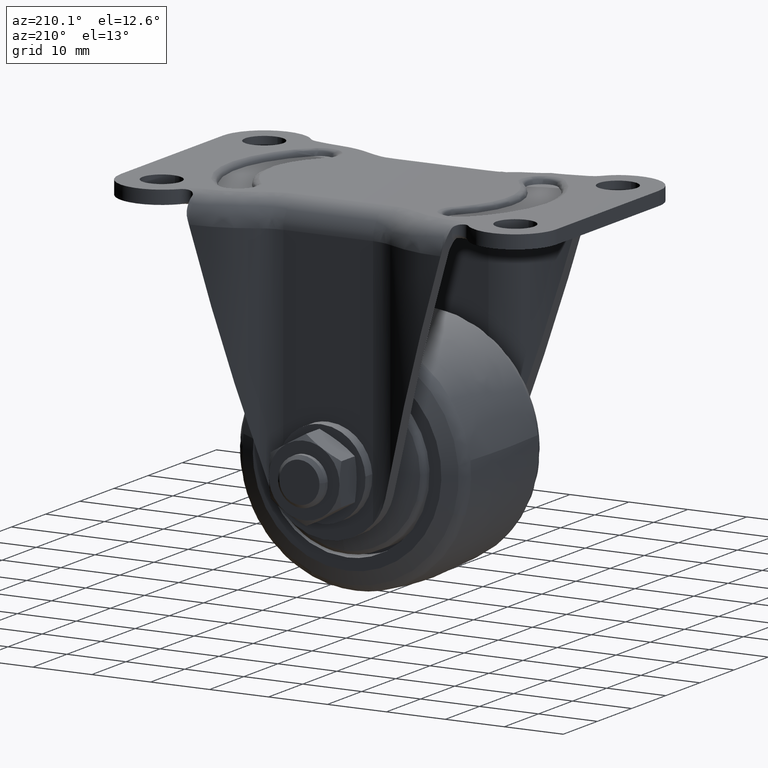
[diagram: clean part render]
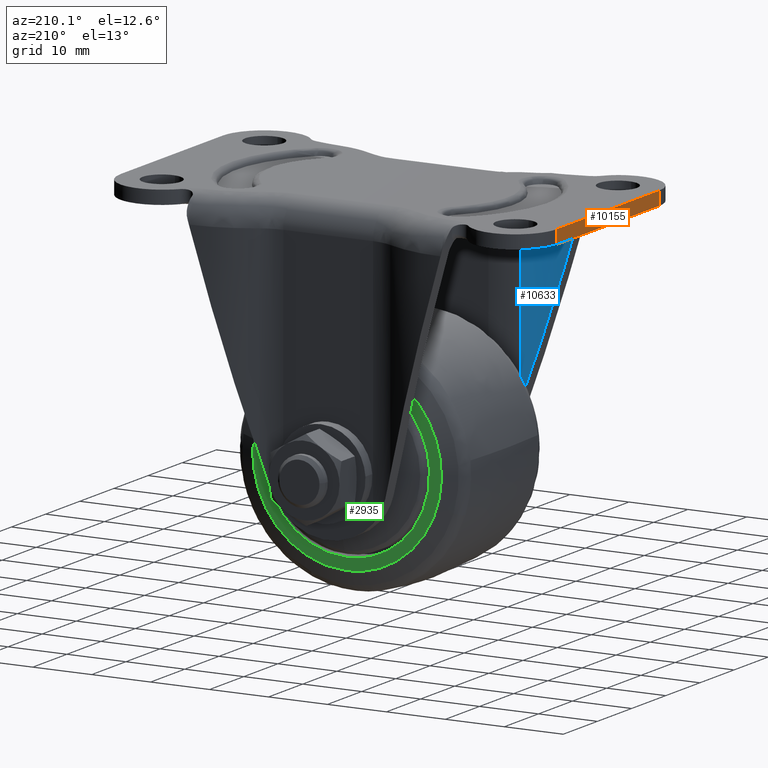
[diagram: same view with three faces highlighted in distinct colors, each labeled with its STEP entity id]
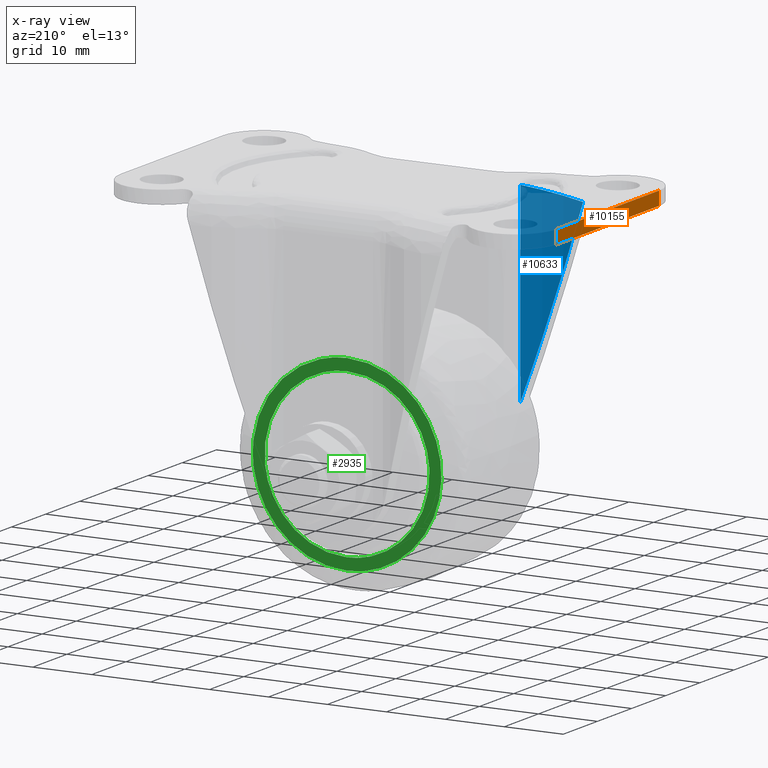
[diagram: x-ray of the same camera — body ghosted, the three highlighted faces saturated]
A machine part, auxiliary view with three faces highlighted in distinct colors.
The next image is the same camera in x-ray (body ghosted, the three faces saturated) — at least one of them is partly hidden behind the body in this view.
Their STEP definitions:

[orange] entity #10155 — the highlighted face is a freeform B-spline surface patch.
#9789=CARTESIAN_POINT('',(-37.0,-14.999999999999840,0.0));
#9790=VERTEX_POINT('',#9789);
#9806=CARTESIAN_POINT('',(-37.0,-14.999999999999840,-2.299999999999970));
#9807=VERTEX_POINT('',#9806);
#9808=CARTESIAN_POINT('',(-37.0,-14.999999999999840,-2.299999999999970));
#9809=CARTESIAN_POINT('',(-37.0,-14.999999999999840,0.0));
#9810=QUASI_UNIFORM_CURVE('',1,(#9808,#9809),.UNSPECIFIED.,.F.,.U.);
#9811=EDGE_CURVE('',#9807,#9790,#9810,.T.);
#10092=CARTESIAN_POINT('',(-37.0,14.999999999999821,0.0));
#10093=VERTEX_POINT('',#10092);
#10111=CARTESIAN_POINT('',(-37.0,14.999999999999821,-2.299999999999970));
#10112=VERTEX_POINT('',#10111);
#10128=CARTESIAN_POINT('',(-37.0,14.999999999999821,-2.299999999999970));
#10129=CARTESIAN_POINT('',(-37.0,14.999999999999821,0.0));
#10130=QUASI_UNIFORM_CURVE('',1,(#10128,#10129),.UNSPECIFIED.,.F.,.U.);
#10131=EDGE_CURVE('',#10112,#10093,#10130,.T.);
#10136=CARTESIAN_POINT('',(-37.0,-16.498499941854000,0.114884987324937));
#10137=CARTESIAN_POINT('',(-37.0,-16.498499941854000,-2.414884884506895));
#10138=CARTESIAN_POINT('',(-37.0,16.498500746516680,0.114884987324937));
#10139=CARTESIAN_POINT('',(-37.0,16.498500746516680,-2.414884884506895));
#10140=B_SPLINE_SURFACE_WITH_KNOTS('',1,1,((#10136,#10138),(#10137,#10139)),.UNSPECIFIED.,.F.,.F.,.U.,(2,2),(2,2),(0.0,2.529769871831832),(0.0,32.997000688370690),.UNSPECIFIED.);
#10141=CARTESIAN_POINT('',(-37.0,-14.999999999999840,0.0));
#10142=CARTESIAN_POINT('',(-37.0,14.999999999999821,0.0));
#10143=QUASI_UNIFORM_CURVE('',1,(#10141,#10142),.UNSPECIFIED.,.F.,.U.);
#10144=EDGE_CURVE('',#9790,#10093,#10143,.T.);
#10145=ORIENTED_EDGE('',*,*,#10144,.T.);
#10146=ORIENTED_EDGE('',*,*,#10131,.F.);
#10147=CARTESIAN_POINT('',(-37.0,-14.999999999999840,-2.299999999999970));
#10148=CARTESIAN_POINT('',(-37.0,14.999999999999821,-2.299999999999970));
#10149=QUASI_UNIFORM_CURVE('',1,(#10147,#10148),.UNSPECIFIED.,.F.,.U.);
#10150=EDGE_CURVE('',#9807,#10112,#10149,.T.);
#10151=ORIENTED_EDGE('',*,*,#10150,.F.);
#10152=ORIENTED_EDGE('',*,*,#9811,.T.);
#10153=EDGE_LOOP('',(#10145,#10146,#10151,#10152));
#10154=FACE_OUTER_BOUND('',#10153,.T.);
#10155=ADVANCED_FACE('',(#10154),#10140,.F.);

[blue] entity #10633 — the highlighted face is a freeform B-spline surface patch.
#7751=CARTESIAN_POINT('',(-12.296251224728040,-17.037886183437301,-2.299999999999970));
#7752=VERTEX_POINT('',#7751);
#7761=CARTESIAN_POINT('',(-21.379621236358101,-19.689877085946399,-4.387732706115575));
#7762=VERTEX_POINT('',#7761);
#7763=CARTESIAN_POINT('',(-21.379621236358101,-19.689877085946399,-4.387732706115575));
#7764=CARTESIAN_POINT('',(-19.786629918374349,-19.637880718246901,-4.039777266880416));
#7765=CARTESIAN_POINT('',(-18.200315446346199,-19.384571422490509,-3.691821809987780));
#7766=CARTESIAN_POINT('',(-15.140385549855321,-18.491190855368849,-2.995910896127765));
#7767=CARTESIAN_POINT('',(-13.666973345552011,-17.851178916392559,-2.647955439235130));
#7768=CARTESIAN_POINT('',(-12.296251224728040,-17.037886183437301,-2.299999999999970));
#7769=B_SPLINE_CURVE_WITH_KNOTS('',3,(#7763,#7764,#7765,#7766,#7767,#7768),.UNSPECIFIED.,.F.,.U.,(4,2,4),(0.0,0.500000000000000,1.0),.UNSPECIFIED.);
#7770=EDGE_CURVE('',#7762,#7752,#7769,.T.);
#9238=CARTESIAN_POINT('',(-12.296251224728040,-17.037886183437301,-34.955609809046798));
#9239=VERTEX_POINT('',#9238);
#9240=CARTESIAN_POINT('',(-12.296251224728040,-17.037886183437301,-34.955609809046798));
#9241=CARTESIAN_POINT('',(-16.497323635411718,-19.530518454324781,-20.817920274669795));
#9242=CARTESIAN_POINT('',(-21.379621236358101,-19.689877085946399,-4.387732706115575));
#9250=(BOUNDED_CURVE()B_SPLINE_CURVE(2,(#9240,#9241,#9242),.UNSPECIFIED.,.F.,.U.)CURVE()GEOMETRIC_REPRESENTATION_ITEM()QUASI_UNIFORM_CURVE()RATIONAL_B_SPLINE_CURVE((1.0,0.968555913844997,1.0))REPRESENTATION_ITEM(''));
#9251=EDGE_CURVE('',#9239,#7762,#9250,.T.);
#10591=CARTESIAN_POINT('',(-12.296251224728040,-17.037886183437301,-34.955609809046798));
#10592=CARTESIAN_POINT('',(-12.296251224728040,-17.037886183437301,-2.299999999999970));
#10593=QUASI_UNIFORM_CURVE('',1,(#10591,#10592),.UNSPECIFIED.,.F.,.U.);
#10594=EDGE_CURVE('',#9239,#7752,#10593,.T.);
#10614=CARTESIAN_POINT('',(-12.153901199819369,-16.952583339974399,-35.772000054272972));
#10615=CARTESIAN_POINT('',(-12.153901199819369,-16.952583339974399,-1.463199998643141));
#10616=CARTESIAN_POINT('',(-16.625747108518024,-19.658912694138625,-35.772000054272972));
#10617=CARTESIAN_POINT('',(-16.625747108518024,-19.658912694138625,-1.463199998643141));
#10618=CARTESIAN_POINT('',(-21.852599214327224,-19.699427732753289,-35.772000054272972));
#10619=CARTESIAN_POINT('',(-21.852599214327224,-19.699427732753289,-1.463199998643141));
#10627=(BOUNDED_SURFACE()B_SPLINE_SURFACE(1,2,((#10614,#10616,#10618),(#10615,#10617,#10619)),.UNSPECIFIED.,.F.,.F.,.U.)B_SPLINE_SURFACE_WITH_KNOTS((2,2),(3,3),(0.0,34.308800055629838),(0.0,10.263686991409219),.UNSPECIFIED.)GEOMETRIC_REPRESENTATION_ITEM()RATIONAL_B_SPLINE_SURFACE(((1.0,0.962807246015747,0.997032226103209),(1.0,0.962807246015747,0.997032226103209)))REPRESENTATION_ITEM('')SURFACE());
#10628=ORIENTED_EDGE('',*,*,#9251,.T.);
#10629=ORIENTED_EDGE('',*,*,#7770,.T.);
#10630=ORIENTED_EDGE('',*,*,#10594,.F.);
#10631=EDGE_LOOP('',(#10628,#10629,#10630));
#10632=FACE_OUTER_BOUND('',#10631,.T.);
#10633=ADVANCED_FACE('',(#10632),#10627,.F.);

[green] entity #2935 — the highlighted face is a freeform B-spline surface patch.
#320=CARTESIAN_POINT('',(-13.973887835304611,12.500000000000000,-39.145331195017647));
#321=VERTEX_POINT('',#320);
#327=CARTESIAN_POINT('',(0.0,12.500000000000000,-26.0));
#328=VERTEX_POINT('',#327);
#329=CARTESIAN_POINT('',(0.0,12.500000000000000,-26.0));
#330=CARTESIAN_POINT('',(-13.169895085691973,12.499999999999998,-26.0));
#331=CARTESIAN_POINT('',(-13.973887835304607,12.500000000000000,-39.145331195017647));
#339=(BOUNDED_CURVE()B_SPLINE_CURVE(2,(#329,#330,#331),.UNSPECIFIED.,.F.,.U.)B_SPLINE_CURVE_WITH_KNOTS((3,3),(0.500000000000000,0.739333094962399),.UNSPECIFIED.)CURVE()GEOMETRIC_REPRESENTATION_ITEM()RATIONAL_B_SPLINE_CURVE((1.0,0.719603837791509,0.976072326118514))REPRESENTATION_ITEM(''));
#340=EDGE_CURVE('',#328,#321,#339,.T.);
#342=CARTESIAN_POINT('',(13.902135248177339,12.500000000000000,-41.652463476489473));
#343=VERTEX_POINT('',#342);
#344=CARTESIAN_POINT('',(13.902135248177336,12.499999999999998,-41.652463476489480));
#345=CARTESIAN_POINT('',(13.999999999999998,12.499999999999998,-40.829129687211712));
#346=CARTESIAN_POINT('',(14.0,12.500000000000000,-40.0));
#347=CARTESIAN_POINT('',(13.999999999999998,12.499999999999998,-26.000000000000007));
#348=CARTESIAN_POINT('',(0.0,12.500000000000000,-26.0));
#356=(BOUNDED_CURVE()B_SPLINE_CURVE(2,(#344,#345,#346,#347,#348),.UNSPECIFIED.,.F.,.U.)B_SPLINE_CURVE_WITH_KNOTS((3,2,3),(0.229562665696416,0.250000000000000,0.500000000000000),.UNSPECIFIED.)CURVE()GEOMETRIC_REPRESENTATION_ITEM()RATIONAL_B_SPLINE_CURVE((0.956027130870409,0.976056173487427,1.0,0.707106781186547,1.0))REPRESENTATION_ITEM(''));
#357=EDGE_CURVE('',#343,#328,#356,.T.);
#401=CARTESIAN_POINT('',(0.0,12.500000000000000,-54.0));
#402=VERTEX_POINT('',#401);
#403=CARTESIAN_POINT('',(0.0,12.500000000000000,-54.0));
#404=CARTESIAN_POINT('',(12.434457602596298,12.500000000000000,-54.0));
#405=CARTESIAN_POINT('',(13.902135248177336,12.499999999999998,-41.652463476489480));
#413=(BOUNDED_CURVE()B_SPLINE_CURVE(2,(#403,#404,#405),.UNSPECIFIED.,.F.,.U.)B_SPLINE_CURVE_WITH_KNOTS((3,3),(0.0,0.229562665696416),.UNSPECIFIED.)CURVE()GEOMETRIC_REPRESENTATION_ITEM()RATIONAL_B_SPLINE_CURVE((1.0,0.731050607699121,0.956027130870409))REPRESENTATION_ITEM(''));
#414=EDGE_CURVE('',#402,#343,#413,.T.);
#416=CARTESIAN_POINT('',(-13.973887835304604,12.499999999999996,-39.145331195017647));
#417=CARTESIAN_POINT('',(-13.999999999999998,12.500000000000007,-39.572266703141146));
#418=CARTESIAN_POINT('',(-14.0,12.500000000000000,-40.0));
#419=CARTESIAN_POINT('',(-13.999999999999998,12.499999999999998,-54.0));
#420=CARTESIAN_POINT('',(0.0,12.500000000000000,-54.0));
#428=(BOUNDED_CURVE()B_SPLINE_CURVE(2,(#416,#417,#418,#419,#420),.UNSPECIFIED.,.F.,.U.)B_SPLINE_CURVE_WITH_KNOTS((3,2,3),(0.739333094962399,0.750000000000000,1.0),.UNSPECIFIED.)CURVE()GEOMETRIC_REPRESENTATION_ITEM()RATIONAL_B_SPLINE_CURVE((0.976072326118515,0.987502943395039,1.0,0.707106781186547,1.0))REPRESENTATION_ITEM(''));
#429=EDGE_CURVE('',#321,#402,#428,.T.);
#493=CARTESIAN_POINT('',(10.950954337435119,12.500000000000000,-28.334812513319321));
#494=VERTEX_POINT('',#493);
#500=CARTESIAN_POINT('',(0.0,12.500000000000000,-24.0));
#501=VERTEX_POINT('',#500);
#502=CARTESIAN_POINT('',(10.950954337435119,12.500000000000004,-28.334812513319321));
#503=CARTESIAN_POINT('',(6.333420638604079,12.500000000000002,-24.0));
#504=CARTESIAN_POINT('',(0.0,12.500000000000000,-24.0));
#512=(BOUNDED_CURVE()B_SPLINE_CURVE(2,(#502,#503,#504),.UNSPECIFIED.,.F.,.U.)B_SPLINE_CURVE_WITH_KNOTS((3,3),(0.379763969171774,0.500000000000000),.UNSPECIFIED.)CURVE()GEOMETRIC_REPRESENTATION_ITEM()RATIONAL_B_SPLINE_CURVE((0.853766105134810,0.859134727653470,1.0))REPRESENTATION_ITEM(''));
#513=EDGE_CURVE('',#494,#501,#512,.T.);
#515=CARTESIAN_POINT('',(0.0,12.500000000000000,-56.0));
#516=VERTEX_POINT('',#515);
#517=CARTESIAN_POINT('',(0.0,12.500000000000000,-24.0));
#518=CARTESIAN_POINT('',(-15.999999999999998,12.500000000000000,-23.999999999999996));
#519=CARTESIAN_POINT('',(-16.0,12.500000000000000,-40.0));
#520=CARTESIAN_POINT('',(-15.999999999999998,12.500000000000000,-55.999999999999993));
#521=CARTESIAN_POINT('',(0.0,12.500000000000000,-56.0));
#529=(BOUNDED_CURVE()B_SPLINE_CURVE(2,(#517,#518,#519,#520,#521),.UNSPECIFIED.,.F.,.U.)B_SPLINE_CURVE_WITH_KNOTS((3,2,3),(0.500000000000000,0.750000000000000,1.0),.UNSPECIFIED.)CURVE()GEOMETRIC_REPRESENTATION_ITEM()RATIONAL_B_SPLINE_CURVE((1.0,0.707106781186548,1.0,0.707106781186548,1.0))REPRESENTATION_ITEM(''));
#530=EDGE_CURVE('',#501,#516,#529,.T.);
#532=CARTESIAN_POINT('',(15.863117781982149,12.499999999991109,-37.911580924333983));
#533=VERTEX_POINT('',#532);
#534=CARTESIAN_POINT('',(0.0,12.500000000000000,-56.0));
#535=CARTESIAN_POINT('',(15.999999999999998,12.500000000000000,-55.999999999999993));
#536=CARTESIAN_POINT('',(16.0,12.500000000000000,-40.0));
#537=CARTESIAN_POINT('',(15.999999999999996,12.499999999999998,-38.951304594811774));
#538=CARTESIAN_POINT('',(15.863117781982151,12.499999999991104,-37.911580924333990));
#546=(BOUNDED_CURVE()B_SPLINE_CURVE(2,(#534,#535,#536,#537,#538),.UNSPECIFIED.,.F.,.U.)B_SPLINE_CURVE_WITH_KNOTS((3,2,3),(0.0,0.250000000000000,0.272560615558866),.UNSPECIFIED.)CURVE()GEOMETRIC_REPRESENTATION_ITEM()RATIONAL_B_SPLINE_CURVE((1.0,0.707106781186548,1.0,0.973568594762203,0.951907659702411))REPRESENTATION_ITEM(''));
#547=EDGE_CURVE('',#516,#533,#546,.T.);
#649=CARTESIAN_POINT('',(15.863117781982151,12.499999999991104,-37.911580924333990));
#650=CARTESIAN_POINT('',(15.117229363921741,12.500000000000004,-32.245995906158704));
#651=CARTESIAN_POINT('',(10.950954337435119,12.500000000000004,-28.334812513319321));
#659=(BOUNDED_CURVE()B_SPLINE_CURVE(2,(#649,#650,#651),.UNSPECIFIED.,.F.,.U.)B_SPLINE_CURVE_WITH_KNOTS((3,3),(0.272560615558866,0.379763969171774),.UNSPECIFIED.)CURVE()GEOMETRIC_REPRESENTATION_ITEM()RATIONAL_B_SPLINE_CURVE((0.951907659702411,0.848979400730834,0.853766105134810))REPRESENTATION_ITEM(''));
#660=EDGE_CURVE('',#533,#494,#659,.T.);
#2918=CARTESIAN_POINT('',(-17.598278180279710,12.500000000000000,-57.598399937977803));
#2919=CARTESIAN_POINT('',(-17.598278180279710,12.500000000000000,-22.401599203715332));
#2920=CARTESIAN_POINT('',(17.595841447033859,12.500000000000000,-57.598399937977803));
#2921=CARTESIAN_POINT('',(17.595841447033859,12.500000000000000,-22.401599203715332));
#2922=B_SPLINE_SURFACE_WITH_KNOTS('',1,1,((#2918,#2920),(#2919,#2921)),.UNSPECIFIED.,.F.,.F.,.U.,(2,2),(2,2),(0.0,35.196800734262467),(0.0,35.194119627313562),.UNSPECIFIED.);
#2923=ORIENTED_EDGE('',*,*,#530,.F.);
#2924=ORIENTED_EDGE('',*,*,#513,.F.);
#2925=ORIENTED_EDGE('',*,*,#660,.F.);
#2926=ORIENTED_EDGE('',*,*,#547,.F.);
#2927=EDGE_LOOP('',(#2923,#2924,#2925,#2926));
#2928=FACE_OUTER_BOUND('',#2927,.T.);
#2929=ORIENTED_EDGE('',*,*,#340,.T.);
#2930=ORIENTED_EDGE('',*,*,#429,.T.);
#2931=ORIENTED_EDGE('',*,*,#414,.T.);
#2932=ORIENTED_EDGE('',*,*,#357,.T.);
#2933=EDGE_LOOP('',(#2929,#2930,#2931,#2932));
#2934=FACE_BOUND('',#2933,.T.);
#2935=ADVANCED_FACE('',(#2928,#2934),#2922,.T.);